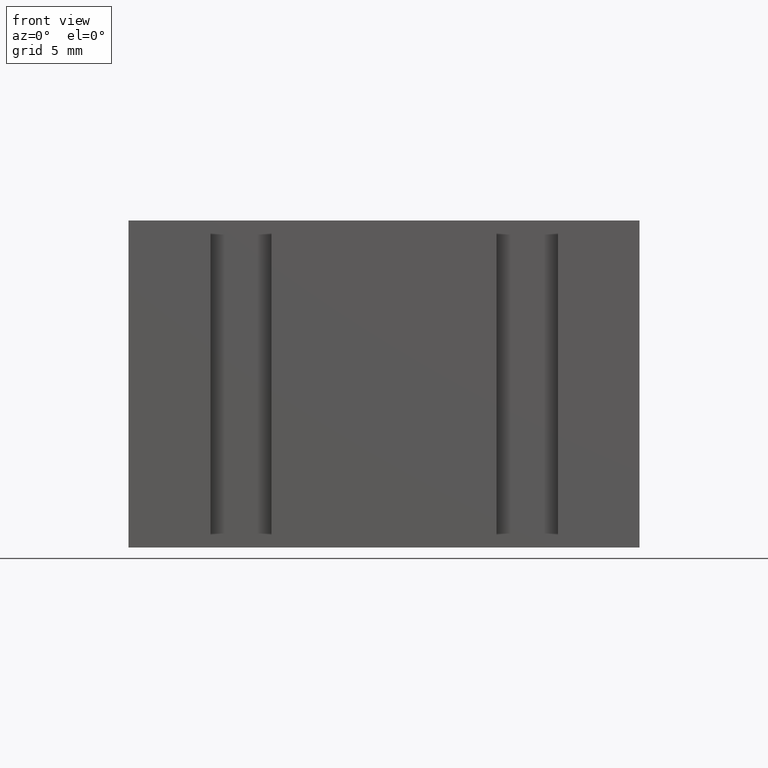
[diagram: clean part render]
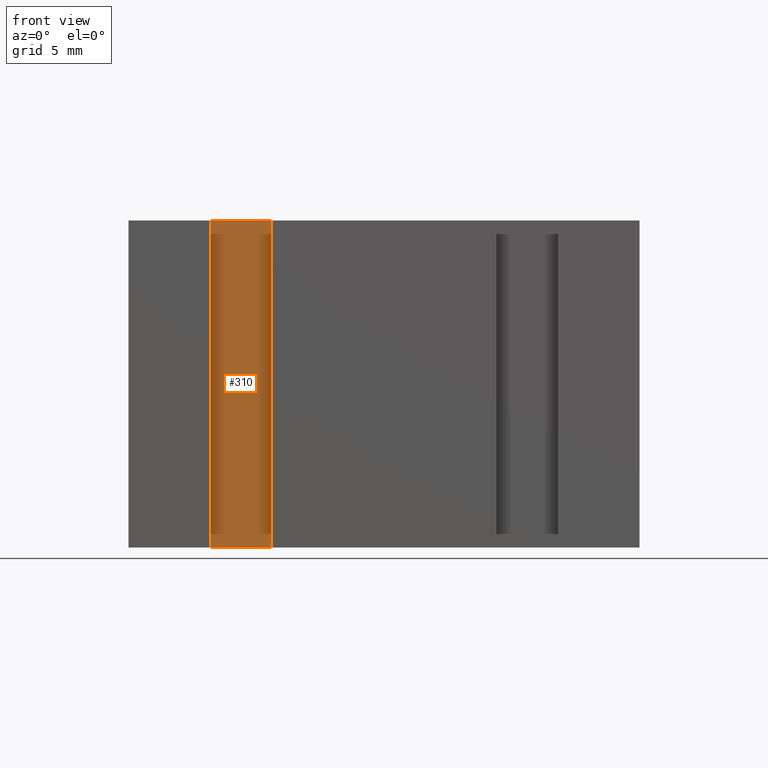
[diagram: same view with one face highlighted and labeled with its STEP entity id]
A machine part, front view. The second image highlights one B-rep face of the part: STEP entity #310.
In plain terms, the highlighted planar face has unit normal (0, -1, 0).
Its self-contained STEP definition (entity closure, byte-faithful):
#24=FACE_OUTER_BOUND('',#40,.T.);
#40=EDGE_LOOP('',(#238,#239,#240,#241));
#57=LINE('',#453,#99);
#74=LINE('',#486,#116);
#75=LINE('',#489,#117);
#76=LINE('',#490,#118);
#99=VECTOR('',#370,10.);
#116=VECTOR('',#397,10.);
#117=VECTOR('',#400,10.);
#118=VECTOR('',#401,10.);
#141=VERTEX_POINT('',#450);
#142=VERTEX_POINT('',#452);
#153=VERTEX_POINT('',#484);
#154=VERTEX_POINT('',#488);
#169=EDGE_CURVE('',#142,#141,#57,.T.);
#186=EDGE_CURVE('',#153,#141,#74,.T.);
#187=EDGE_CURVE('',#153,#154,#75,.T.);
#188=EDGE_CURVE('',#154,#142,#76,.T.);
#238=ORIENTED_EDGE('',*,*,#187,.T.);
#239=ORIENTED_EDGE('',*,*,#188,.T.);
#240=ORIENTED_EDGE('',*,*,#169,.T.);
#241=ORIENTED_EDGE('',*,*,#186,.F.);
#294=PLANE('',#349);
#310=ADVANCED_FACE('',(#24),#294,.T.);
#349=AXIS2_PLACEMENT_3D('',#487,#398,#399);
#370=DIRECTION('',(1.,0.,0.));
#397=DIRECTION('',(0.,0.,-1.));
#398=DIRECTION('center_axis',(0.,-1.,0.));
#399=DIRECTION('ref_axis',(0.,0.,-1.));
#400=DIRECTION('',(-1.,0.,0.));
#401=DIRECTION('',(0.,0.,-1.));
#450=CARTESIAN_POINT('',(-5.5,1.,-8.));
#452=CARTESIAN_POINT('',(-8.5,1.,-8.));
#453=CARTESIAN_POINT('',(-5.5,1.,-8.));
#484=CARTESIAN_POINT('',(-5.5,1.,8.));
#486=CARTESIAN_POINT('',(-5.5,1.,0.));
#487=CARTESIAN_POINT('Origin',(-5.5,1.,0.));
#488=CARTESIAN_POINT('',(-8.5,1.,8.));
#489=CARTESIAN_POINT('',(-5.5,1.,8.));
#490=CARTESIAN_POINT('',(-8.5,1.,0.));